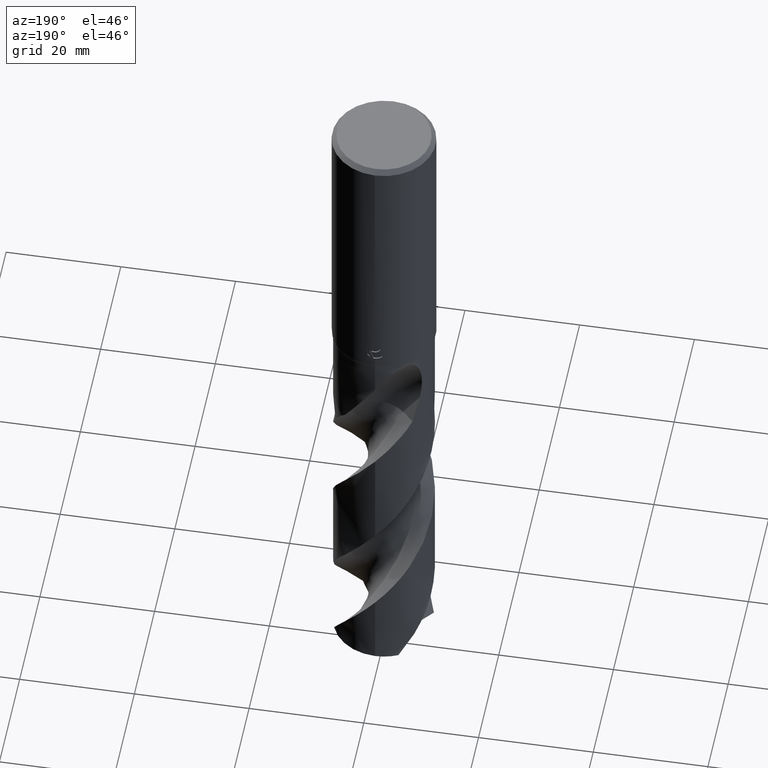
[diagram: clean part render]
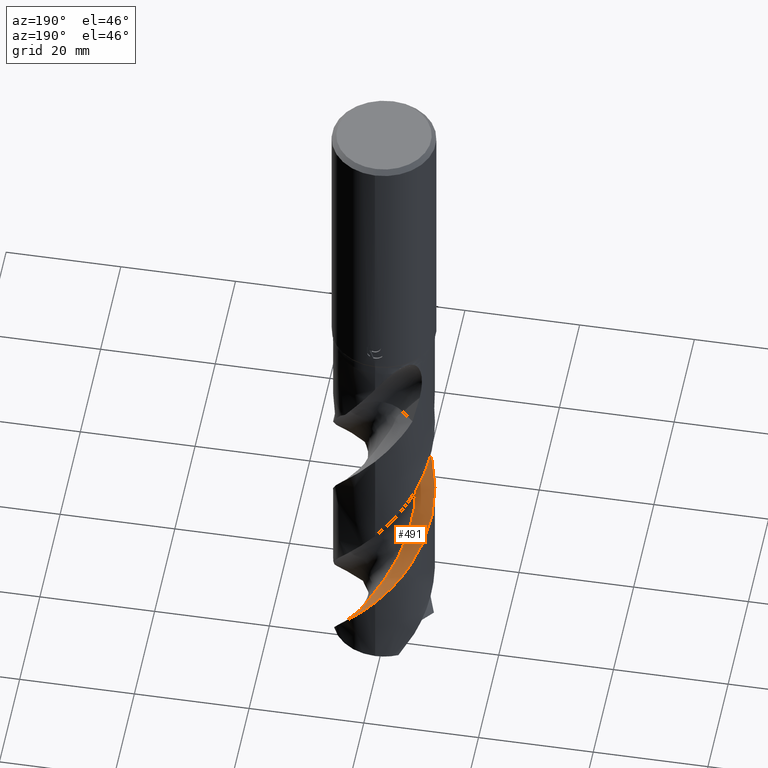
[diagram: same view with one face highlighted and labeled with its STEP entity id]
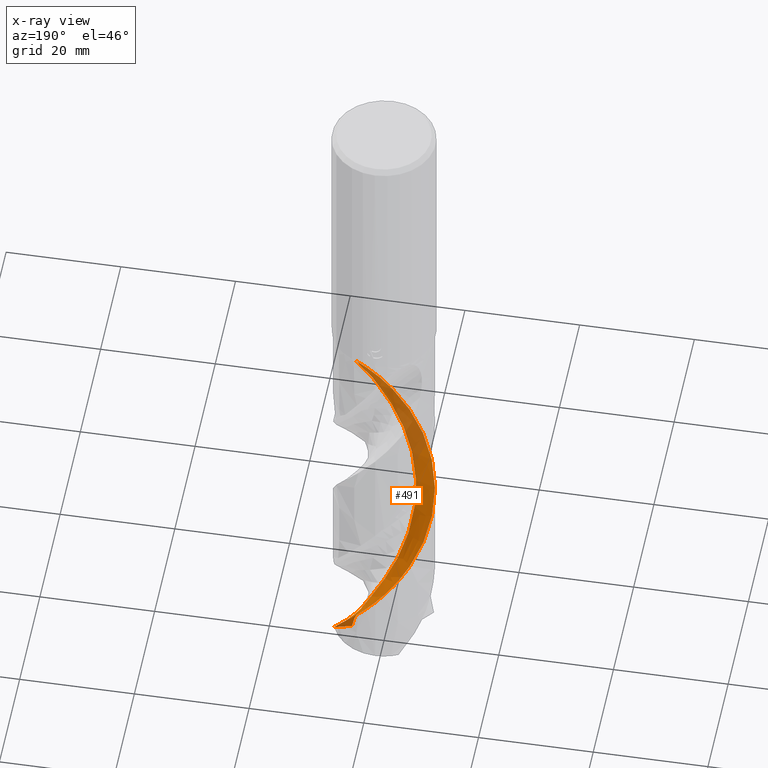
[diagram: x-ray of the same camera — body ghosted, the highlighted face saturated]
A machine part, auxiliary view. The second image highlights one B-rep face of the part: STEP entity #491.
The next image is the same camera in x-ray: the body ghosted, the highlighted face saturated — about 29% of this face is hidden behind the body in this view.
In plain terms, the highlighted face is a freeform B-spline surface patch.
Its self-contained STEP definition (entity closure, byte-faithful):
#339=EDGE_CURVE('',#443,#585,#828,.T.);
#393=EDGE_CURVE('',#471,#709,#890,.T.);
#419=VERTEX_POINT('',#921);
#443=VERTEX_POINT('',#947);
#447=VERTEX_POINT('',#951);
#471=VERTEX_POINT('',#978);
#491=ADVANCED_FACE('',(#998),#999,.F.);
#561=EDGE_CURVE('',#447,#709,#1077,.T.);
#585=VERTEX_POINT('',#1102);
#627=EDGE_CURVE('',#471,#443,#1149,.T.);
#651=EDGE_CURVE('',#419,#447,#1174,.T.);
#709=VERTEX_POINT('',#1236);
#713=EDGE_CURVE('',#585,#419,#1240,.T.);
#828=B_SPLINE_CURVE_WITH_KNOTS('',3,(#1567,#1568,#1569,#1570,#1571,#1572,#1573,#1574,#1575,#1576,#1577,#1578,#1579,#1580,#1581,#1582,#1583,#1584,#1585,#1586,#1587,#1588,#1589,#1590,#1591,#1592,#1593,#1594,#1595,#1596,#1597,#1598,#1599,#1600,#1601,#1602,#1603,#1604,#1605,#1606,#1607,#1608,#1609,#1610,#1611,#1612,#1613,#1614,#1615,#1616,#1617,#1618,#1619,#1620,#1621,#1622,#1623,#1624,#1625,#1626,#1627,#1628,#1629,#1630,#1631,#1632,#1633,#1634,#1635,#1636,#1637,#1638,#1639,#1640,#1641,#1642,#1643,#1644,#1645,#1646,#1647,#1648,#1649,#1650,#1651,#1652,#1653,#1654,#1655,#1656,#1657,#1658,#1659,#1660,#1661,#1662),.UNSPECIFIED.,.F.,.F.,(4,2,2,2,2,2,2,2,2,2,2,2,2,2,2,2,2,2,2,2,2,2,2,2,2,2,2,2,2,2,2,2,2,2,2,2,2,2,2,2,2,2,2,2,2,2,2,4),(0.0,0.245507380170843,0.350571643075017,1.395727254963,1.75121163288603,1.97614686563744,2.18570531824396,2.90763652603391,3.24173027483911,3.70690767106164,4.35111834800054,5.37181342132324,6.99202779965413,8.75473559861788,9.82239104476386,12.4353693166588,13.5149695218915,14.5839453858922,16.7292639530105,17.8100349589752,19.9438823553706,22.0974948359425,24.2480668471858,26.3975937035348,27.477086701343,28.5406174187847,30.684555936824,31.7651695662003,33.8998065443546,36.0538108940197,38.2023473233192,40.3517941158014,42.5096472111785,44.6540260811914,45.7343488328198,47.8665947325595,50.0208399451616,52.1672222816644,54.3168824520309,55.3175252101478,56.2465060748161,59.7418490257528,61.0610371438247,63.3781294761052,64.2490928390077,65.0112059642977,65.0943980190321,70.3596381664071),.UNSPECIFIED.);
#890=B_SPLINE_CURVE_WITH_KNOTS('',3,(#1752,#1753,#1754,#1755,#1756,#1757,#1758,#1759,#1760,#1761,#1762,#1763,#1764,#1765,#1766,#1767,#1768,#1769,#1770,#1771,#1772,#1773,#1774,#1775,#1776,#1777,#1778,#1779,#1780,#1781,#1782,#1783,#1784,#1785,#1786,#1787,#1788,#1789,#1790,#1791,#1792,#1793,#1794,#1795,#1796,#1797,#1798,#1799,#1800,#1801,#1802,#1803,#1804,#1805,#1806,#1807,#1808,#1809),.UNSPECIFIED.,.F.,.F.,(4,1,2,2,2,2,2,2,1,2,1,2,1,2,1,2,1,2,1,2,1,2,1,2,1,2,1,2,1,2,1,2,2,1,2,4),(0.0,1.39101639114549,2.78203278229099,4.17304917343648,5.56406556458198,6.95508195572747,8.34609834687297,11.128131129164,13.9101639114549,16.6921966937459,19.4742294760369,22.2562622583279,25.0382950406189,27.8203278229099,30.6023606052009,33.3843933874919,36.1664261697829,38.9484589520739,41.7304917343648,44.5125245166558,47.2945572989468,50.0765900812378,52.8586228635288,55.6406556458198,58.4226884281108,61.2047212104018,63.9867539926927,66.7687867749837,69.5508195572747,72.3328523395657,75.1148851218567,77.8969179041477,80.6789506864387,83.4609834687297,86.2430162510207,89.0250490333116),.UNSPECIFIED.);
#921=CARTESIAN_POINT('',(1.10111830476442E-014,8.74998104379688,-106.580937867135));
#947=CARTESIAN_POINT('',(6.08186943309707,-6.29062365396806,-63.235));
#951=CARTESIAN_POINT('',(8.13744065526409,3.21629594130501,-119.815260450171));
#978=CARTESIAN_POINT('',(4.12478955449379,-4.33354377550621,-63.235));
#998=FACE_OUTER_BOUND('',#3057,.T.);
#999=B_SPLINE_SURFACE_WITH_KNOTS('',3,3,((#3058,#3059,#3060,#3061,#3062,#3063,#3064,#3065,#3066,#3067,#3068,#3069,#3070,#3071,#3072,#3073,#3074,#3075,#3076,#3077,#3078,#3079,#3080,#3081,#3082,#3083,#3084,#3085,#3086,#3087,#3088,#3089,#3090,#3091,#3092,#3093,#3094,#3095,#3096,#3097,#3098,#3099,#3100,#3101,#3102,#3103,#3104,#3105,#3106,#3107,#3108,#3109,#3110,#3111,#3112,#3113,#3114,#3115,#3116,#3117),(#3118,#3119,#3120,#3121,#3122,#3123,#3124,#3125,#3126,#3127,#3128,#3129,#3130,#3131,#3132,#3133,#3134,#3135,#3136,#3137,#3138,#3139,#3140,#3141,#3142,#3143,#3144,#3145,#3146,#3147,#3148,#3149,#3150,#3151,#3152,#3153,#3154,#3155,#3156,#3157,#3158,#3159,#3160,#3161,#3162,#3163,#3164,#3165,#3166,#3167,#3168,#3169,#3170,#3171,#3172,#3173,#3174,#3175,#3176,#3177),(#3178,#3179,#3180,#3181,#3182,#3183,#3184,#3185,#3186,#3187,#3188,#3189,#3190,#3191,#3192,#3193,#3194,#3195,#3196,#3197,#3198,#3199,#3200,#3201,#3202,#3203,#3204,#3205,#3206,#3207,#3208,#3209,#3210,#3211,#3212,#3213,#3214,#3215,#3216,#3217,#3218,#3219,#3220,#3221,#3222,#3223,#3224,#3225,#3226,#3227,#3228,#3229,#3230,#3231,#3232,#3233,#3234,#3235,#3236,#3237),(#3238,#3239,#3240,#3241,#3242,#3243,#3244,#3245,#3246,#3247,#3248,#3249,#3250,#3251,#3252,#3253,#3254,#3255,#3256,#3257,#3258,#3259,#3260,#3261,#3262,#3263,#3264,#3265,#3266,#3267,#3268,#3269,#3270,#3271,#3272,#3273,#3274,#3275,#3276,#3277,#3278,#3279,#3280,#3281,#3282,#3283,#3284,#3285,#3286,#3287,#3288,#3289,#3290,#3291,#3292,#3293,#3294,#3295,#3296,#3297)),.UNSPECIFIED.,.F.,.F.,.F.,(4,4),(4,1,2,2,2,2,2,2,2,2,1,2,1,2,1,2,1,2,1,2,1,2,1,2,1,2,1,2,1,2,1,2,2,2,2,4),(2.5367484805458E-015,11.66666667),(0.0,1.39101639114549,2.78203278229099,4.17304917343648,5.56406556458198,6.95508195572747,8.34609834687297,11.128131129164,13.9101639114549,16.6921966937459,19.4742294760369,22.2562622583279,25.0382950406189,27.8203278229099,30.6023606052009,33.3843933874919,36.1664261697829,38.9484589520739,41.7304917343648,44.5125245166558,47.2945572989468,50.0765900812378,52.8586228635288,55.6406556458198,58.4226884281108,61.2047212104018,63.9867539926927,66.7687867749837,69.5508195572747,72.3328523395657,75.1148851218567,77.8969179041477,80.6789506864387,83.4609834687297,86.2430162510207,89.0250490333116),.UNSPECIFIED.);
#1077=B_SPLINE_CURVE_WITH_KNOTS('',3,(#4242,#4243,#4244,#4245,#4246,#4247),.UNSPECIFIED.,.F.,.F.,(4,2,4),(0.0,3.9223870728841,7.73565698404464),.UNSPECIFIED.);
#1102=CARTESIAN_POINT('',(-3.17431485475902E-013,-8.7499311827888,-71.7703451904479));
#1149=LINE('',#4553,#4554);
#1174=B_SPLINE_CURVE_WITH_KNOTS('',3,(#4958,#4959,#4960,#4961,#4962,#4963,#4964,#4965,#4966,#4967,#4968,#4969,#4970,#4971,#4972,#4973,#4974,#4975,#4976,#4977,#4978,#4979,#4980,#4981,#4982,#4983,#4984,#4985,#4986,#4987,#4988,#4989,#4990,#4991,#4992,#4993,#4994,#4995,#4996,#4997,#4998,#4999,#5000,#5001,#5002,#5003,#5004,#5005,#5006,#5007,#5008,#5009,#5010,#5011,#5012,#5013,#5014,#5015,#5016,#5017,#5018,#5019,#5020,#5021,#5022,#5023,#5024,#5025,#5026,#5027,#5028,#5029,#5030,#5031,#5032,#5033,#5034,#5035,#5036,#5037,#5038,#5039,#5040,#5041,#5042,#5043,#5044,#5045,#5046,#5047,#5048,#5049,#5050,#5051,#5052,#5053),.UNSPECIFIED.,.F.,.F.,(4,2,2,2,2,2,2,2,2,2,2,2,2,2,2,2,2,2,2,2,2,2,2,2,2,2,2,2,2,2,2,2,2,2,2,2,2,2,2,2,2,2,2,2,2,2,2,4),(0.0,0.245507380170843,0.350571643075017,1.395727254963,1.75121163288603,1.97614686563744,2.18570531824396,2.90763652603391,3.24173027483911,3.70690767106164,4.35111834800054,5.37181342132324,6.99202779965413,8.75473559861788,9.82239104476386,12.4353693166588,13.5149695218915,14.5839453858922,16.7292639530105,17.8100349589752,19.9438823553706,22.0974948359425,24.2480668471858,26.3975937035348,27.477086701343,28.5406174187847,30.684555936824,31.7651695662003,33.8998065443546,36.0538108940197,38.2023473233192,40.3517941158014,42.5096472111785,44.6540260811914,45.7343488328198,47.8665947325595,50.0208399451616,52.1672222816644,54.3168824520309,55.3175252101478,56.2465060748161,59.7418490257528,61.0610371438247,63.3781294761052,64.2490928390077,65.0112059642977,65.0943980190321,70.3596381664071),.UNSPECIFIED.);
#1236=CARTESIAN_POINT('',(5.37178128145233,1.24871425534203,-120.992700976098));
#1240=B_SPLINE_CURVE_WITH_KNOTS('',3,(#5209,#5210,#5211,#5212,#5213,#5214,#5215,#5216,#5217,#5218,#5219,#5220,#5221,#5222,#5223,#5224,#5225,#5226,#5227,#5228,#5229,#5230,#5231,#5232,#5233,#5234,#5235,#5236,#5237,#5238,#5239,#5240,#5241,#5242,#5243,#5244,#5245,#5246,#5247,#5248,#5249,#5250,#5251,#5252,#5253,#5254,#5255,#5256,#5257,#5258,#5259,#5260,#5261,#5262,#5263,#5264,#5265,#5266,#5267,#5268,#5269,#5270,#5271,#5272,#5273,#5274,#5275,#5276,#5277,#5278,#5279,#5280,#5281,#5282,#5283,#5284,#5285,#5286,#5287,#5288,#5289,#5290,#5291,#5292,#5293,#5294,#5295,#5296,#5297,#5298,#5299,#5300,#5301,#5302,#5303,#5304),.UNSPECIFIED.,.F.,.F.,(4,2,2,2,2,2,2,2,2,2,2,2,2,2,2,2,2,2,2,2,2,2,2,2,2,2,2,2,2,2,2,2,2,2,2,2,2,2,2,2,2,2,2,2,2,2,2,4),(0.0,0.245507380170843,0.350571643075017,1.395727254963,1.75121163288603,1.97614686563744,2.18570531824396,2.90763652603391,3.24173027483911,3.70690767106164,4.35111834800054,5.37181342132324,6.99202779965413,8.75473559861788,9.82239104476386,12.4353693166588,13.5149695218915,14.5839453858922,16.7292639530105,17.8100349589752,19.9438823553706,22.0974948359425,24.2480668471858,26.3975937035348,27.477086701343,28.5406174187847,30.684555936824,31.7651695662003,33.8998065443546,36.0538108940197,38.2023473233192,40.3517941158014,42.5096472111785,44.6540260811914,45.7343488328198,47.8665947325595,50.0208399451616,52.1672222816644,54.3168824520309,55.3175252101478,56.2465060748161,59.7418490257528,61.0610371438247,63.3781294761052,64.2490928390077,65.0112059642977,65.0943980190321,70.3596381664071),.UNSPECIFIED.);
#1567=CARTESIAN_POINT('',(6.08186943309706,-6.29062365396806,-63.235));
#1568=CARTESIAN_POINT('',(6.04695114056061,-6.32438331488388,-63.3008642180626));
#1569=CARTESIAN_POINT('',(6.01169387551492,-6.35790875757231,-63.3667040252356));
#1570=CARTESIAN_POINT('',(5.96078889463706,-6.40550695858466,-63.4606122428381));
#1571=CARTESIAN_POINT('',(5.94546613209726,-6.41973201142739,-63.4887336033103));
#1572=CARTESIAN_POINT('',(5.77689377400906,-6.57510366858302,-63.7964182215658));
#1573=CARTESIAN_POINT('',(5.6198693855694,-6.71005726229731,-64.0672614045973));
#1574=CARTESIAN_POINT('',(5.39333102092037,-6.89046403243696,-64.434665739004));
#1575=CARTESIAN_POINT('',(5.33508239081258,-6.93566993394222,-64.5273143581722));
#1576=CARTESIAN_POINT('',(5.23841689336202,-7.00873108713868,-64.6785128773168));
#1577=CARTESIAN_POINT('',(5.2006622050373,-7.03679304229602,-64.7369516092899));
#1578=CARTESIAN_POINT('',(5.12710835949873,-7.09054389136373,-64.849786905083));
#1579=CARTESIAN_POINT('',(5.09140179359838,-7.11622730878856,-64.9041103574334));
#1580=CARTESIAN_POINT('',(4.93161537760109,-7.22933748268537,-65.1455739996998));
#1581=CARTESIAN_POINT('',(4.80588047595231,-7.31358327595121,-65.3319736659403));
#1582=CARTESIAN_POINT('',(4.61491717895543,-7.43429816937099,-65.6131355273926));
#1583=CARTESIAN_POINT('',(4.55417462096435,-7.47165978818011,-65.7021895683608));
#1584=CARTESIAN_POINT('',(4.40810659813298,-7.55907139299482,-65.9156068519517));
#1585=CARTESIAN_POINT('',(4.3228485621441,-7.60814257823308,-66.0396410482821));
#1586=CARTESIAN_POINT('',(4.11732401394325,-7.72187852507259,-66.337342261508));
#1587=CARTESIAN_POINT('',(3.99662547767314,-7.78502685785634,-66.5109601417654));
#1588=CARTESIAN_POINT('',(3.6814987335427,-7.94066559480272,-66.9590563801048));
#1589=CARTESIAN_POINT('',(3.48454366230284,-8.02906177012657,-67.2338248885201));
#1590=CARTESIAN_POINT('',(2.96631652560157,-8.23892139081913,-67.9433539039622));
#1591=CARTESIAN_POINT('',(2.6413502176823,-8.34879771535567,-68.3745974998749));
#1592=CARTESIAN_POINT('',(1.94973057671976,-8.53811370153049,-69.2813541843633));
#1593=CARTESIAN_POINT('',(1.58343596884471,-8.61356586428193,-69.7537106388538));
#1594=CARTESIAN_POINT('',(0.989423283880422,-8.69675215242062,-70.5136045397731));
#1595=CARTESIAN_POINT('',(0.764296597746477,-8.71941761625547,-70.8003492720272));
#1596=CARTESIAN_POINT('',(-0.0136838373550614,-8.76740065174396,-71.7888179791641));
#1597=CARTESIAN_POINT('',(-0.568323297196325,-8.74901878257479,-72.487978616382));
#1598=CARTESIAN_POINT('',(-1.34491889534234,-8.64898493196426,-73.4787451903307));
#1599=CARTESIAN_POINT('',(-1.57070262765392,-8.61084289211526,-73.768305250687));
#1600=CARTESIAN_POINT('',(-2.01648422559392,-8.51742344146447,-74.3449062825655));
#1601=CARTESIAN_POINT('',(-2.2363028236008,-8.46236366048873,-74.6317120991434));
#1602=CARTESIAN_POINT('',(-2.88990634311814,-8.27141903834646,-75.4946949736193));
#1603=CARTESIAN_POINT('',(-3.31567926066237,-8.11014470092906,-76.0701879325569));
#1604=CARTESIAN_POINT('',(-3.93434652129481,-7.81887591437314,-76.9360885710545));
#1605=CARTESIAN_POINT('',(-4.13773739151371,-7.71317603060438,-77.2259807977665));
#1606=CARTESIAN_POINT('',(-4.72978259212243,-7.37532051002985,-78.0885676305373));
#1607=CARTESIAN_POINT('',(-5.10462886665366,-7.12100011982243,-78.6602519585989));
#1608=CARTESIAN_POINT('',(-5.81465575386511,-6.554348952274,-79.8113522304908));
#1609=CARTESIAN_POINT('',(-6.14861488298059,-6.24215830582371,-80.3887157387166));
#1610=CARTESIAN_POINT('',(-6.76450179401147,-5.56874864225426,-81.5438396426138));
#1611=CARTESIAN_POINT('',(-7.0453524686113,-5.20885909755066,-82.1196848054443));
#1612=CARTESIAN_POINT('',(-7.54819184916735,-4.44902590141817,-83.2742335524868));
#1613=CARTESIAN_POINT('',(-7.76958568175996,-4.05004021644,-83.8507073442956));
#1614=CARTESIAN_POINT('',(-8.05402921679033,-3.42733333906293,-84.7173950019565));
#1615=CARTESIAN_POINT('',(-8.14092767638335,-3.21548256081841,-85.0069488946261));
#1616=CARTESIAN_POINT('',(-8.29676500474799,-2.78858352603368,-85.5820635022457));
#1617=CARTESIAN_POINT('',(-8.36585655192069,-2.57388802440909,-85.8673170771149));
#1618=CARTESIAN_POINT('',(-8.54895906042397,-1.91922713484442,-86.7284907017642));
#1619=CARTESIAN_POINT('',(-8.63709799950328,-1.47268976602944,-87.3037081481228));
#1620=CARTESIAN_POINT('',(-8.7168894506855,-0.793743905881658,-88.1693570114054));
#1621=CARTESIAN_POINT('',(-8.73468768477551,-0.565213579147177,-88.4592721956927));
#1622=CARTESIAN_POINT('',(-8.76088967376838,0.116169448625162,-89.3222298570315));
#1623=CARTESIAN_POINT('',(-8.74314436067854,0.569036229118955,-89.8943389076591));
#1624=CARTESIAN_POINT('',(-8.63737829360467,1.47167610740551,-91.0459856937966));
#1625=CARTESIAN_POINT('',(-8.54884317756405,1.92034625765798,-91.6235264694683));
#1626=CARTESIAN_POINT('',(-8.30273018106785,2.7989447857647,-92.778397077264));
#1627=CARTESIAN_POINT('',(-8.145793823656,3.22726046112694,-93.3538207821398));
#1628=CARTESIAN_POINT('',(-7.76673948850341,4.05550607010148,-94.5080111228307));
#1629=CARTESIAN_POINT('',(-7.5450571292593,4.4544072733002,-95.0845539344211));
#1630=CARTESIAN_POINT('',(-7.04042121705228,5.21572214389278,-96.2408598726556));
#1631=CARTESIAN_POINT('',(-6.75814945954487,5.5766073240678,-96.8185444277856));
#1632=CARTESIAN_POINT('',(-6.14181476812009,6.2487334003351,-97.9738603709943));
#1633=CARTESIAN_POINT('',(-5.80891292716821,6.55936342626212,-98.5492655578257));
#1634=CARTESIAN_POINT('',(-5.27418198869191,6.98551844175301,-99.4150857084048));
#1635=CARTESIAN_POINT('',(-5.08947219717215,7.12122033523081,-99.7049656105187));
#1636=CARTESIAN_POINT('',(-4.52489339677787,7.50279371699478,-100.567341546109));
#1637=CARTESIAN_POINT('',(-4.1312445850339,7.72651839020674,-101.138967422886));
#1638=CARTESIAN_POINT('',(-3.30903652010841,8.11300256098309,-102.290209900186));
#1639=CARTESIAN_POINT('',(-2.88110159214424,8.27466663941564,-102.867871029936));
#1640=CARTESIAN_POINT('',(-2.00517740987729,8.52928048479052,-104.022387299036));
#1641=CARTESIAN_POINT('',(-1.55893005006292,8.62199673096349,-104.597361207727));
#1642=CARTESIAN_POINT('',(-0.655677359061875,8.73726726659154,-105.751221391228));
#1643=CARTESIAN_POINT('',(-0.199751187008872,8.75957279451484,-106.327898851739));
#1644=CARTESIAN_POINT('',(0.468094281644172,8.74002910025182,-107.173738455606));
#1645=CARTESIAN_POINT('',(0.679949708368616,8.7261053460766,-107.442254432378));
#1646=CARTESIAN_POINT('',(1.08714923327317,8.68441956876159,-107.960279189675));
#1647=CARTESIAN_POINT('',(1.28239539231208,8.65774041334346,-108.209536036407));
#1648=CARTESIAN_POINT('',(2.20703239522124,8.49944130204558,-109.39775790451));
#1649=CARTESIAN_POINT('',(2.91897162524612,8.282019109531,-110.333520334465));
#1650=CARTESIAN_POINT('',(3.8502618126734,7.86232263911101,-111.626150568195));
#1651=CARTESIAN_POINT('',(4.09966291381705,7.7351986294086,-111.9799701061));
#1652=CARTESIAN_POINT('',(4.76898962943171,7.3525788899059,-112.956813572083));
#1653=CARTESIAN_POINT('',(5.17429776646863,7.07322545324003,-113.578780366444));
#1654=CARTESIAN_POINT('',(5.69680384024765,6.6440136464892,-114.435086372614));
#1655=CARTESIAN_POINT('',(5.83582492195996,6.52224407876544,-114.668923785118));
#1656=CARTESIAN_POINT('',(6.08910960031771,6.28579933212143,-115.107471223783));
#1657=CARTESIAN_POINT('',(6.20423235659359,6.1721987734448,-115.312060175938));
#1658=CARTESIAN_POINT('',(6.32835999379529,6.04272820807818,-115.539050963789));
#1659=CARTESIAN_POINT('',(6.3405371892199,6.02994967658704,-115.56139023297));
#1660=CARTESIAN_POINT('',(7.12092583826255,5.2060461725843,-116.997674507354));
#1661=CARTESIAN_POINT('',(7.72679317318363,4.25525561885099,-118.401274613178));
#1662=CARTESIAN_POINT('',(8.13744065526407,3.21629594130507,-119.815260450171));
#1752=CARTESIAN_POINT('',(4.1247895544938,-4.33354377550621,-63.235));
#1753=CARTESIAN_POINT('',(3.77645616445166,-4.31152079683385,-63.5457102260851));
#1754=CARTESIAN_POINT('',(3.20662024093853,-4.3327416030977,-64.1651343730379));
#1755=CARTESIAN_POINT('',(2.89089463792021,-4.47023649211264,-64.7831297684385));
#1756=CARTESIAN_POINT('',(2.69035371169134,-4.67658113932097,-65.4060808472433));
#1757=CARTESIAN_POINT('',(2.59368328361544,-4.78042581959444,-65.7183461283764));
#1758=CARTESIAN_POINT('',(2.40211113893187,-4.98912802571495,-66.3460502161992));
#1759=CARTESIAN_POINT('',(2.27856935349798,-5.07085990461522,-66.6595486270126));
#1760=CARTESIAN_POINT('',(1.99098261609314,-5.18751605156565,-67.2827938111816));
#1761=CARTESIAN_POINT('',(1.83788062469508,-5.23315518339921,-67.5937569778198));
#1762=CARTESIAN_POINT('',(1.519654179233,-5.30065511416193,-68.2135270523726));
#1763=CARTESIAN_POINT('',(1.3648073029081,-5.33422096522413,-68.5238374423506));
#1764=CARTESIAN_POINT('',(0.910571157443271,-5.43511942960356,-69.4572011099172));
#1765=CARTESIAN_POINT('',(0.603432150116775,-5.4782258595351,-70.0798248743369));
#1766=CARTESIAN_POINT('',(-0.00849320171286022,-5.52429413360709,-71.3267623241437));
#1767=CARTESIAN_POINT('',(-0.63232583795208,-5.50147392697858,-72.5723212023335));
#1768=CARTESIAN_POINT('',(-1.24179383701627,-5.37517440417505,-73.8164211751213));
#1769=CARTESIAN_POINT('',(-1.83521538404798,-5.21057912099607,-75.0619271845112));
#1770=CARTESIAN_POINT('',(-2.41601505113245,-4.98120582283179,-76.3076867982922));
#1771=CARTESIAN_POINT('',(-2.94942882972431,-4.65937189681166,-77.5525561380626));
#1772=CARTESIAN_POINT('',(-3.45544802116565,-4.30945288154386,-78.7977785802314));
#1773=CARTESIAN_POINT('',(-3.92811607619388,-3.90220328378114,-80.0434016414764));
#1774=CARTESIAN_POINT('',(-4.32508455870751,-3.42210827761753,-81.2883031296988));
#1775=CARTESIAN_POINT('',(-4.68649656746802,-2.92392990461419,-82.5335694349336));
#1776=CARTESIAN_POINT('',(-4.99754550471388,-2.38287775648526,-83.7792048052511));
#1777=CARTESIAN_POINT('',(-5.21334478150672,-1.79850004630504,-85.024101070578));
#1778=CARTESIAN_POINT('',(-5.38977450609991,-1.20893816943146,-86.2693761966126));
#1779=CARTESIAN_POINT('',(-5.504460049285,-0.595528197451616,-87.5150192164951));
#1780=CARTESIAN_POINT('',(-5.51487036050869,0.0273078146947815,-88.7599138410707));
#1781=CARTESIAN_POINT('',(-5.48640383306262,0.642017415345429,-90.0051806592729));
#1782=CARTESIAN_POINT('',(-5.39174516771179,1.2588233355954,-91.2508206772326));
#1783=CARTESIAN_POINT('',(-5.19547825799709,1.85004380506878,-92.4957138155722));
#1784=CARTESIAN_POINT('',(-4.96517559267861,2.42072835177363,-93.7409751987574));
#1785=CARTESIAN_POINT('',(-4.67174269412443,2.97148742600015,-94.9866112910163));
#1786=CARTESIAN_POINT('',(-4.29091626874727,3.46448919272117,-96.2315070005135));
#1787=CARTESIAN_POINT('',(-3.88476261156395,3.9268518212584,-97.4767750401516));
#1788=CARTESIAN_POINT('',(-3.4256532697369,4.34953630820278,-98.7224148538861));
#1789=CARTESIAN_POINT('',(-2.90323156250137,4.68884036288425,-99.9673148555738));
#1790=CARTESIAN_POINT('',(-2.36705902760622,4.99087263258737,-101.212590782194));
#1791=CARTESIAN_POINT('',(-1.79400872040026,5.23792849430001,-102.458230234942));
#1792=CARTESIAN_POINT('',(-1.18878743981606,5.38535006652249,-103.703113761097));
#1793=CARTESIAN_POINT('',(-0.5829339658762,5.49307019260873,-104.948366948598));
#1794=CARTESIAN_POINT('',(0.0395688999833924,5.53666201309968,-106.194013977329));
#1795=CARTESIAN_POINT('',(0.659560654806151,5.47538062408917,-107.438935544905));
#1796=CARTESIAN_POINT('',(1.26703451116937,5.37628751768538,-108.684224162543));
#1797=CARTESIAN_POINT('',(1.86892135299355,5.21143048978561,-109.929827752193));
#1798=CARTESIAN_POINT('',(2.43370675428933,4.94914752280466,-111.17465497643));
#1799=CARTESIAN_POINT('',(2.97425901421179,4.65566543800207,-112.419881611918));
#1800=CARTESIAN_POINT('',(3.48774050487845,4.30085656722699,-113.665637016453));
#1801=CARTESIAN_POINT('',(3.93324555874842,3.86416118280486,-114.910653784253));
#1802=CARTESIAN_POINT('',(4.34495863003048,3.40531057209375,-116.155888939284));
#1803=CARTESIAN_POINT('',(4.52930330042367,3.15466041559549,-116.778439439662));
#1804=CARTESIAN_POINT('',(4.85574043555923,2.62955971642568,-118.023786828017));
#1805=CARTESIAN_POINT('',(5.1314317125396,2.06849706048039,-119.270147478998));
#1806=CARTESIAN_POINT('',(5.31627738212136,1.47775852974929,-120.513746511354));
#1807=CARTESIAN_POINT('',(5.46130524510955,0.883086878880869,-121.757449543899));
#1808=CARTESIAN_POINT('',(5.49151355102552,0.567624054684736,-122.380227039899));
#1809=CARTESIAN_POINT('',(5.48400523910252,0.247098141477521,-123.002075501232));
#3057=EDGE_LOOP('',(#5756,#5757,#5758,#5759,#5760,#5761));
#3058=CARTESIAN_POINT('',(4.12478955456451,-4.3335437754355,-63.235));
#3059=CARTESIAN_POINT('',(3.77645616452237,-4.3115207967549,-63.5457102260861));
#3060=CARTESIAN_POINT('',(3.20662024100923,-4.33274160303085,-64.1651343730378));
#3061=CARTESIAN_POINT('',(2.89089463799721,-4.47023649204884,-64.7831297684373));
#3062=CARTESIAN_POINT('',(2.69035371176834,-4.67658113925717,-65.4060808472442));
#3063=CARTESIAN_POINT('',(2.59368328369837,-4.7804258195468,-65.7183461283763));
#3064=CARTESIAN_POINT('',(2.40211113901479,-4.98912802565083,-66.3460502161991));
#3065=CARTESIAN_POINT('',(2.27856935357339,-5.07085990457552,-66.6595486270126));
#3066=CARTESIAN_POINT('',(1.99098261619326,-5.18751605150948,-67.2827938111816));
#3067=CARTESIAN_POINT('',(1.83788062478645,-5.23315518335445,-67.5937569778198));
#3068=CARTESIAN_POINT('',(1.51965417932437,-5.30065511412541,-68.2135270523726));
#3069=CARTESIAN_POINT('',(1.36480730300247,-5.33422096518281,-68.5238374423547));
#3070=CARTESIAN_POINT('',(0.910571157537638,-5.43511942958695,-69.4572011099088));
#3071=CARTESIAN_POINT('',(0.603432150215364,-5.47822585951837,-70.0798248743369));
#3072=CARTESIAN_POINT('',(-0.00849320161427064,-5.52429413359036,-71.3267623241437));
#3073=CARTESIAN_POINT('',(-0.320452119815132,-5.51286262567487,-71.9497970721984));
#3074=CARTESIAN_POINT('',(-0.937017237301512,-5.43834557019495,-73.1941158797676));
#3075=CARTESIAN_POINT('',(-1.24179383690123,-5.37517440419191,-73.8164211751213));
#3076=CARTESIAN_POINT('',(-1.83521538396588,-5.21057912101293,-75.0619271845111));
#3077=CARTESIAN_POINT('',(-2.41601505103677,-4.98120582286539,-76.3076867982921));
#3078=CARTESIAN_POINT('',(-2.94942882962038,-4.65937189686015,-77.5525561380626));
#3079=CARTESIAN_POINT('',(-3.45544802109467,-4.30945288159236,-78.7977785802314));
#3080=CARTESIAN_POINT('',(-3.92811607609823,-3.90220328384452,-80.0434016414763));
#3081=CARTESIAN_POINT('',(-4.3250845586575,-3.42210827769223,-81.2883031296988));
#3082=CARTESIAN_POINT('',(-4.68649656738507,-2.92392990468889,-82.5335694349336));
#3083=CARTESIAN_POINT('',(-4.99754550466424,-2.38287775657949,-83.7792048052511));
#3084=CARTESIAN_POINT('',(-5.21334478147693,-1.79850004638105,-85.0241010705779));
#3085=CARTESIAN_POINT('',(-5.38977450605365,-1.20893816954042,-86.2693761966125));
#3086=CARTESIAN_POINT('',(-5.50446004927095,-0.595528197542319,-87.5150192164786));
#3087=CARTESIAN_POINT('',(-5.51487036049516,0.0273078145949218,-88.7599138411036));
#3088=CARTESIAN_POINT('',(-5.48640383306557,0.64201741524557,-90.0051806592399));
#3089=CARTESIAN_POINT('',(-5.39174516771937,1.25882333549465,-91.250820677249));
#3090=CARTESIAN_POINT('',(-5.19547825802512,1.85004380497279,-92.4957138155721));
#3091=CARTESIAN_POINT('',(-4.96517559270665,2.42072835167764,-93.7409751987574));
#3092=CARTESIAN_POINT('',(-4.67174269417704,2.97148742590072,-94.9866112910162));
#3093=CARTESIAN_POINT('',(-4.29091626878901,3.46448919265633,-96.2315070005135));
#3094=CARTESIAN_POINT('',(-3.88476261163863,3.92685182116062,-97.4767750401515));
#3095=CARTESIAN_POINT('',(-3.4256532698007,4.34953630814375,-98.7224148538861));
#3096=CARTESIAN_POINT('',(-2.9032315625832,4.68884036281854,-99.9673148555738));
#3097=CARTESIAN_POINT('',(-2.36705902768805,4.99087263253813,-101.212590782193));
#3098=CARTESIAN_POINT('',(-1.79400872048774,5.23792849424823,-102.458230234909));
#3099=CARTESIAN_POINT('',(-1.18878743992053,5.38535006650356,-103.703113761163));
#3100=CARTESIAN_POINT('',(-0.582933965964202,5.49307019257333,-104.948366948532));
#3101=CARTESIAN_POINT('',(0.0395688998866709,5.53666201310125,-106.194013977362));
#3102=CARTESIAN_POINT('',(0.65956065468987,5.47538062407889,-107.438935544904));
#3103=CARTESIAN_POINT('',(1.26703451108603,5.37628751770804,-108.684224162543));
#3104=CARTESIAN_POINT('',(1.86892135289482,5.21143048979642,-109.929827752192));
#3105=CARTESIAN_POINT('',(2.43370675418071,4.94914752285176,-111.17465497643));
#3106=CARTESIAN_POINT('',(2.97425901413613,4.6556654380327,-112.419881611918));
#3107=CARTESIAN_POINT('',(3.48774050479296,4.30085656728771,-113.66563701642));
#3108=CARTESIAN_POINT('',(3.93324555865782,3.86416118286787,-114.910653784319));
#3109=CARTESIAN_POINT('',(4.34495862997283,3.405310572165,-116.155888939218));
#3110=CARTESIAN_POINT('',(4.52930330035367,3.15466041566589,-116.778439439727));
#3111=CARTESIAN_POINT('',(4.8557404355057,2.62955971651256,-118.023786827951));
#3112=CARTESIAN_POINT('',(4.99329646634718,2.34867622161,-118.646865039311));
#3113=CARTESIAN_POINT('',(5.22414415493726,1.77347996213362,-119.892049109373));
#3114=CARTESIAN_POINT('',(5.31627738208089,1.47775852983571,-120.513746511354));
#3115=CARTESIAN_POINT('',(5.46130524508555,0.883086878983768,-121.757449543899));
#3116=CARTESIAN_POINT('',(5.49151355100928,0.567624054791645,-122.380227039965));
#3117=CARTESIAN_POINT('',(5.48400523908628,0.247098141576193,-123.002075501232));
#3118=CARTESIAN_POINT('',(6.87464925994477,-7.08340348088485,-63.2349999999914));
#3119=CARTESIAN_POINT('',(6.52797361996631,-7.05972259198695,-63.5456651027966));
#3120=CARTESIAN_POINT('',(5.91782619824664,-7.12232386038888,-64.1626306179655));
#3121=CARTESIAN_POINT('',(5.46751536621841,-7.38568323844169,-64.7765229914927));
#3122=CARTESIAN_POINT('',(5.0759316775554,-7.75031122623848,-65.399566078551));
#3123=CARTESIAN_POINT('',(4.87660099901894,-7.9314897598069,-65.7126396679107));
#3124=CARTESIAN_POINT('',(4.46570584634584,-8.28799453365938,-66.3443967632556));
#3125=CARTESIAN_POINT('',(4.23885731448296,-8.43132074092125,-66.6596049129222));
#3126=CARTESIAN_POINT('',(3.75925536192145,-8.65286373214093,-67.2833223901004));
#3127=CARTESIAN_POINT('',(3.51156317909283,-8.74494140926832,-67.5940099162102));
#3128=CARTESIAN_POINT('',(3.00703323695685,-8.89531058571097,-68.2115186217264));
#3129=CARTESIAN_POINT('',(2.75426648224313,-8.96804850669578,-68.5210317432441));
#3130=CARTESIAN_POINT('',(1.99187716558545,-9.17699204466355,-69.4539303247017));
#3131=CARTESIAN_POINT('',(1.47262523871372,-9.27520073664485,-70.0765467575545));
#3132=CARTESIAN_POINT('',(0.423930230652491,-9.39540860316944,-71.3248057949881));
#3133=CARTESIAN_POINT('',(-0.105765803734027,-9.40192053903581,-71.9481579205843));
#3134=CARTESIAN_POINT('',(-1.15775913077696,-9.32706203604978,-73.1917259280086));
#3135=CARTESIAN_POINT('',(-1.68016771668812,-9.24555268420177,-73.8137716103797));
#3136=CARTESIAN_POINT('',(-2.70793867856207,-9.00667495154606,-75.0594672416491));
#3137=CARTESIAN_POINT('',(-3.71069084345645,-8.66743406281204,-76.30561572477));
#3138=CARTESIAN_POINT('',(-4.64247396369125,-8.1673302636715,-77.5501709440023));
#3139=CARTESIAN_POINT('',(-5.53454023984206,-7.60331661531309,-78.7953575117615));
#3140=CARTESIAN_POINT('',(-6.36956363704115,-6.95245376690891,-80.0412625924329));
#3141=CARTESIAN_POINT('',(-7.08347992946205,-6.17226437541952,-81.2858742587468));
#3142=CARTESIAN_POINT('',(-7.73817484627627,-5.34454239416368,-82.5311405639816));
#3143=CARTESIAN_POINT('',(-8.31047186308599,-4.45389995983888,-83.7770663536983));
#3144=CARTESIAN_POINT('',(-8.72612653494656,-3.48150109169541,-85.0216703356415));
#3145=CARTESIAN_POINT('',(-9.07035688880693,-2.48386139896783,-86.2669505865917));
#3146=CARTESIAN_POINT('',(-9.31596468540676,-1.45406339899723,-87.5128918319902));
#3147=CARTESIAN_POINT('',(-9.38662466011334,-0.398899992466679,-88.7574913221076));
#3148=CARTESIAN_POINT('',(-9.38151813889451,0.656453700657512,-90.002758140244));
#3149=CARTESIAN_POINT('',(-9.27266123759175,1.70953198721904,-91.248692678151));
#3150=CARTESIAN_POINT('',(-8.99023548040071,2.72864826563279,-92.4932905284537));
#3151=CARTESIAN_POINT('',(-8.63622119464112,3.72285584280682,-93.7385467867233));
#3152=CARTESIAN_POINT('',(-8.18508342452855,4.68060166798534,-94.9844750351886));
#3153=CARTESIAN_POINT('',(-7.58141683445454,5.54888987945739,-96.2290772315145));
#3154=CARTESIAN_POINT('',(-6.91843187249184,6.36999788566739,-97.4743452711525));
#3155=CARTESIAN_POINT('',(-6.17587813106486,7.12458587425279,-98.7202807069758));
#3156=CARTESIAN_POINT('',(-5.31900338429286,7.74435604124049,-99.9648881301571));
#3157=CARTESIAN_POINT('',(-4.42175875998056,8.30000052812099,-101.210174306608));
#3158=CARTESIAN_POINT('',(-3.47140335394382,8.76652622824587,-102.456107634307));
#3159=CARTESIAN_POINT('',(-2.45775642690605,9.06799197054902,-103.700686282014));
#3160=CARTESIAN_POINT('',(-1.42723130075735,9.29560757673363,-104.945929219552));
#3161=CARTESIAN_POINT('',(-0.376058771026561,9.42148878815143,-106.191870519123));
#3162=CARTESIAN_POINT('',(0.680231021091323,9.37046449282984,-107.436523095843));
#3163=CARTESIAN_POINT('',(1.72797997603323,9.2440543047412,-108.681832213144));
#3164=CARTESIAN_POINT('',(2.76159718759817,9.01509091882099,-109.927717236144));
#3165=CARTESIAN_POINT('',(3.74177436922514,8.61809228916868,-111.172194297029));
#3166=CARTESIAN_POINT('',(4.68916421547682,8.15299151289632,-112.417364558445));
#3167=CARTESIAN_POINT('',(5.588779852933,7.59478654074001,-113.663463028582));
#3168=CARTESIAN_POINT('',(6.3808583443454,6.89418564274674,-114.90829230717));
#3169=CARTESIAN_POINT('',(7.11869029902048,6.13995154914944,-116.153594085973));
#3170=CARTESIAN_POINT('',(7.45225704306403,5.72911970192132,-116.776159951447));
#3171=CARTESIAN_POINT('',(8.04944859765844,4.85929155063209,-118.021374091864));
#3172=CARTESIAN_POINT('',(8.30646386687752,4.39659480793303,-118.644519581784));
#3173=CARTESIAN_POINT('',(8.74555994101456,3.43801065439527,-119.889898398641));
#3174=CARTESIAN_POINT('',(8.92605444178454,2.94138537288113,-120.511403912117));
#3175=CARTESIAN_POINT('',(9.21413663817498,1.92660965092231,-121.754814824469));
#3176=CARTESIAN_POINT('',(9.29514714491136,1.40353841362568,-122.378098579123));
#3177=CARTESIAN_POINT('',(9.32128518555113,0.878552068153399,-122.999762543425));
#3178=CARTESIAN_POINT('',(9.62450896538431,-9.83326318618624,-63.2350000000086));
#3179=CARTESIAN_POINT('',(9.2794905271575,-9.80792461442518,-63.5456201772755));
#3180=CARTESIAN_POINT('',(8.62903233557798,-9.91190597728953,-64.1601267139393));
#3181=CARTESIAN_POINT('',(8.04413628299269,-10.3011300388701,-64.7699163148187));
#3182=CARTESIAN_POINT('',(7.46150945486595,-10.8240412590855,-65.3930512096329));
#3183=CARTESIAN_POINT('',(7.15951856383398,-11.0825542613476,-65.7069333645402));
#3184=CARTESIAN_POINT('',(6.52930070395807,-11.5868604802988,-66.3427431533782));
#3185=CARTESIAN_POINT('',(6.19914514427869,-11.791782052795,-66.6596608300143));
#3186=CARTESIAN_POINT('',(5.52752823866961,-12.1182109371799,-67.2838513377791));
#3187=CARTESIAN_POINT('',(5.18524560257031,-12.2567273983872,-67.5942628561969));
#3188=CARTESIAN_POINT('',(4.49441242529631,-12.4899662939086,-68.2095101896097));
#3189=CARTESIAN_POINT('',(4.14372590336095,-12.601876327749,-68.5182266134968));
#3190=CARTESIAN_POINT('',(3.07318268989842,-12.9188641007177,-69.4506584012195));
#3191=CARTESIAN_POINT('',(2.34181862522544,-13.0721740816354,-70.0732686129474));
#3192=CARTESIAN_POINT('',(0.85635336514752,-13.2665246043262,-71.3228492937293));
#3193=CARTESIAN_POINT('',(0.108920701961879,-13.290976395102,-71.9465185100536));
#3194=CARTESIAN_POINT('',(-1.37850121403528,-13.2157805586948,-73.1893362351699));
#3195=CARTESIAN_POINT('',(-2.1185413681902,-13.1159318308304,-73.8111223937616));
#3196=CARTESIAN_POINT('',(-3.58066220130683,-12.8027699154237,-75.057006950903));
#3197=CARTESIAN_POINT('',(-5.00536676495349,-12.3536634176223,-76.30354519702));
#3198=CARTESIAN_POINT('',(-6.33551861093923,-11.6752872672098,-77.547785006186));
#3199=CARTESIAN_POINT('',(-7.61363294534169,-10.897181712145,-78.7929371868666));
#3200=CARTESIAN_POINT('',(-8.81100999746417,-10.0027037951068,-80.0391226694944));
#3201=CARTESIAN_POINT('',(-9.84187721435188,-8.92242001987932,-81.2834463924331));
#3202=CARTESIAN_POINT('',(-10.7898512110591,-7.76515533696732,-82.5287106888914));
#3203=CARTESIAN_POINT('',(-11.623399288455,-6.52492219012838,-83.7749286483541));
#3204=CARTESIAN_POINT('',(-12.2389080684381,-5.1645016294859,-85.0192391123113));
#3205=CARTESIAN_POINT('',(-12.7509394914508,-3.75878513591418,-86.2645254650081));
#3206=CARTESIAN_POINT('',(-13.1274687683179,-2.31259812341184,-87.510763996098));
#3207=CARTESIAN_POINT('',(-13.2583798457177,-0.825108246037636,-88.7550692179246));
#3208=CARTESIAN_POINT('',(-13.2766315587994,0.670890432480828,-90.0003352069447));
#3209=CARTESIAN_POINT('',(-13.1535775881985,2.16024156409737,-91.2465646911517));
#3210=CARTESIAN_POINT('',(-12.7849930276279,3.60725042933839,-92.4908676318881));
#3211=CARTESIAN_POINT('',(-12.3072664716408,5.02498563051978,-93.7361179841902));
#3212=CARTESIAN_POINT('',(-11.6984245923581,6.38971433775095,-94.9823381198908));
#3213=CARTESIAN_POINT('',(-10.8719168500813,7.63329141414888,-96.2266491726955));
#3214=CARTESIAN_POINT('',(-9.9521016833919,8.81314310228126,-97.4719137928287));
#3215=CARTESIAN_POINT('',(-8.92610167972114,9.89963638287931,-98.7181465752874));
#3216=CARTESIAN_POINT('',(-7.7347772807991,10.7998706827412,-99.9624630865937));
#3217=CARTESIAN_POINT('',(-6.47645641758849,11.6091294603587,-101.20775614957));
#3218=CARTESIAN_POINT('',(-5.1487987624053,12.2951231798115,-102.453985213081));
#3219=CARTESIAN_POINT('',(-3.72672593879413,12.7506344030459,-103.698260125538));
#3220=CARTESIAN_POINT('',(-2.27152811079688,13.0981444326937,-104.943490167982));
#3221=CARTESIAN_POINT('',(-0.791686227103371,13.3063159211233,-106.18972778492));
#3222=CARTESIAN_POINT('',(0.70090043361093,13.2655481741126,-107.434110521681));
#3223=CARTESIAN_POINT('',(2.18892639481515,13.111821279208,-108.679440389503));
#3224=CARTESIAN_POINT('',(3.65427231299764,12.8187514425259,-109.925607456303));
#3225=CARTESIAN_POINT('',(5.04984244903389,12.2870366786583,-111.169732018845));
#3226=CARTESIAN_POINT('',(6.40406895216462,11.6503179644314,-112.414849103961));
#3227=CARTESIAN_POINT('',(7.68981943381857,10.8887160384495,-113.661286791079));
#3228=CARTESIAN_POINT('',(8.82847112929246,9.9242106773214,-114.90593373025));
#3229=CARTESIAN_POINT('',(9.89242196873931,8.87459195141969,-116.151296332416));
#3230=CARTESIAN_POINT('',(10.3752094297596,8.30357785874129,-116.773883408954));
#3231=CARTESIAN_POINT('',(11.2431581155891,7.08902451405125,-118.018958410078));
#3232=CARTESIAN_POINT('',(11.6196305203074,6.44451310799169,-118.642174161252));
#3233=CARTESIAN_POINT('',(12.266976473907,5.10254163296558,-119.887747651091));
#3234=CARTESIAN_POINT('',(12.5358319238316,4.405012115296,-120.509062379974));
#3235=CARTESIAN_POINT('',(12.9669676089834,2.97013252349075,-121.752179037622));
#3236=CARTESIAN_POINT('',(13.0987804123235,2.23945288478931,-122.3759725924));
#3237=CARTESIAN_POINT('',(13.158565132034,1.51000599476368,-122.997449585239));
#3238=CARTESIAN_POINT('',(12.3743686707646,-12.5831228916356,-63.235));
#3239=CARTESIAN_POINT('',(12.0310087833695,-12.5561264096572,-63.5455750139476));
#3240=CARTESIAN_POINT('',(11.3402378924314,-12.7014883147244,-64.1576230389438));
#3241=CARTESIAN_POINT('',(10.6207570112139,-13.2165766251093,-64.7633094177589));
#3242=CARTESIAN_POINT('',(9.84708742065301,-13.8977715062204,-65.386536561055));
#3243=CARTESIAN_POINT('',(9.44243643930817,-14.233618521915,-65.7012269841514));
#3244=CARTESIAN_POINT('',(8.5928952511355,-14.8857266680001,-66.3410896203579));
#3245=CARTESIAN_POINT('',(8.15943310518827,-15.1522430492944,-66.659717516308));
#3246=CARTESIAN_POINT('',(7.2958009843978,-15.5835584576577,-67.2843795163139));
#3247=CARTESIAN_POINT('',(6.85892815687669,-15.7685133039938,-67.5945161148946));
#3248=CARTESIAN_POINT('',(5.98179148292879,-16.0846220858014,-68.2075014386563));
#3249=CARTESIAN_POINT('',(5.53318508260161,-16.2357035489548,-68.5154209143861));
#3250=CARTESIAN_POINT('',(4.15448869794623,-16.6607373564088,-69.4473876160124));
#3251=CARTESIAN_POINT('',(3.21101235433826,-16.8691515212197,-70.069990496165));
#3252=CARTESIAN_POINT('',(1.28877615679982,-17.1376365114474,-71.3208927645737));
#3253=CARTESIAN_POINT('',(0.323607658657442,-17.1800352693847,-71.944878717825));
#3254=CARTESIAN_POINT('',(-1.59924374812518,-17.104496063628,-73.1869469240255));
#3255=CARTESIAN_POINT('',(-2.55691524797709,-16.9863091499186,-73.8084734696345));
#3256=CARTESIAN_POINT('',(-4.45338549590302,-16.5988667068785,-75.0545463674265));
#3257=CARTESIAN_POINT('',(-6.30004287768041,-16.0398902161864,-76.3014744438051));
#3258=CARTESIAN_POINT('',(-8.02856310439564,-15.1832475558645,-77.5453998121258));
#3259=CARTESIAN_POINT('',(-9.69272580470354,-14.1910435240224,-78.7905161183967));
#3260=CARTESIAN_POINT('',(-11.2524564373318,-13.0529552390929,-80.0369836204509));
#3261=CARTESIAN_POINT('',(-12.6002741866926,-11.6725761176066,-81.2810175214812));
#3262=CARTESIAN_POINT('',(-13.8415278884142,-10.1857678264421,-82.5262818179394));
#3263=CARTESIAN_POINT('',(-14.9363262874913,-8.595944713695,-83.7727908374158));
#3264=CARTESIAN_POINT('',(-15.751690142215,-6.8475020341858,-85.0168070961459));
#3265=CARTESIAN_POINT('',(-16.4315215538968,-5.03370900595606,-86.2621011362162));
#3266=CARTESIAN_POINT('',(-16.9389740450681,-3.17113268425229,-87.5086359709951));
#3267=CARTESIAN_POINT('',(-17.1301331844142,-1.25131669371369,-88.7526466989286));
#3268=CARTESIAN_POINT('',(-17.17174682555,0.685327358507228,-89.9979126879488));
#3269=CARTESIAN_POINT('',(-17.0344934979173,2.61095021582175,-91.2444373326682));
#3270=CARTESIAN_POINT('',(-16.579749609389,4.48585424938393,-92.4884430635407));
#3271=CARTESIAN_POINT('',(-15.9783127141897,6.32711376226342,-93.733690853385));
#3272=CARTESIAN_POINT('',(-15.2117650024024,8.09882793922112,-94.9802025046776));
#3273=CARTESIAN_POINT('',(-14.1624174157468,9.71769274156439,-96.2242168412386));
#3274=CARTESIAN_POINT('',(-12.9857709442451,11.2562885261736,-97.4694865862875));
#3275=CARTESIAN_POINT('',(-11.6763271815998,12.674686109142,-98.7160098659193));
#3276=CARTESIAN_POINT('',(-10.1505478212798,13.8553866814704,-99.9600389236348));
#3277=CARTESIAN_POINT('',(-8.53115743110991,14.9182570356343,-101.205337111526));
#3278=CARTESIAN_POINT('',(-6.82619259509332,15.8237209138092,-102.451862612479));
#3279=CARTESIAN_POINT('',(-4.99569524608687,16.4332766273986,-103.695835208847));
#3280=CARTESIAN_POINT('',(-3.1158251252828,16.9006814965467,-104.941049876544));
#3281=CARTESIAN_POINT('',(-1.20731405817022,17.1911431766343,-106.187588170367));
#3282=CARTESIAN_POINT('',(0.721570800012383,17.1606314022491,-107.431692947704));
#3283=CARTESIAN_POINT('',(2.64987185976235,16.9795887068556,-108.677053565019));
#3284=CARTESIAN_POINT('',(4.54694814770099,16.6224110707823,-109.923494377797));
#3285=CARTESIAN_POINT('',(6.35791006407831,15.9559824058969,-111.167271339444));
#3286=CARTESIAN_POINT('',(8.11897415350531,15.1476430783733,-112.412332050487));
#3287=CARTESIAN_POINT('',(9.79085878195861,14.1826464923626,-113.659112803241));
#3288=CARTESIAN_POINT('',(11.27608391498,12.9542351372003,-114.903572253101));
#3289=CARTESIAN_POINT('',(12.666153637787,11.6092329284041,-116.149001479171));
#3290=CARTESIAN_POINT('',(13.2981618912411,10.8780377856112,-116.771606483131));
#3291=CARTESIAN_POINT('',(14.4368675589708,9.31875570755633,-118.016543111532));
#3292=CARTESIAN_POINT('',(14.9327972802233,8.4924313740075,-118.639823578809));
#3293=CARTESIAN_POINT('',(15.7883929005987,6.76707264553446,-119.885602065275));
#3294=CARTESIAN_POINT('',(16.1456089835353,5.86863863803418,-120.506722343195));
#3295=CARTESIAN_POINT('',(16.7197990020728,4.01365561573652,-121.749541755734));
#3296=CARTESIAN_POINT('',(16.9024152874545,3.07536724362335,-122.373844131557));
#3297=CARTESIAN_POINT('',(16.9958450784988,2.14145992134088,-122.995136627432));
#4242=CARTESIAN_POINT('',(10.7618896217777,6.10792368720127,-118.496098136006));
#4243=CARTESIAN_POINT('',(10.0337002351583,5.10282768785198,-118.907169986077));
#4244=CARTESIAN_POINT('',(9.20510621947998,4.17559250204345,-119.324244310677));
#4245=CARTESIAN_POINT('',(7.392100677124,2.5439553371591,-120.158559295794));
#4246=CARTESIAN_POINT('',(6.41652680289864,1.83760322778478,-120.573789489164));
#4247=CARTESIAN_POINT('',(5.37178128141934,1.24871425543429,-120.992700976102));
#4553=CARTESIAN_POINT('',(4.1247895545645,-4.33354377543549,-63.235));
#4554=VECTOR('',#5930,0.999999999999999);
#4958=CARTESIAN_POINT('',(6.08186943309706,-6.29062365396806,-63.235));
#4959=CARTESIAN_POINT('',(6.04695114056061,-6.32438331488388,-63.3008642180626));
#4960=CARTESIAN_POINT('',(6.01169387551492,-6.35790875757231,-63.3667040252356));
#4961=CARTESIAN_POINT('',(5.96078889463706,-6.40550695858466,-63.4606122428381));
#4962=CARTESIAN_POINT('',(5.94546613209726,-6.41973201142739,-63.4887336033103));
#4963=CARTESIAN_POINT('',(5.77689377400906,-6.57510366858302,-63.7964182215658));
#4964=CARTESIAN_POINT('',(5.6198693855694,-6.71005726229731,-64.0672614045973));
#4965=CARTESIAN_POINT('',(5.39333102092037,-6.89046403243696,-64.434665739004));
#4966=CARTESIAN_POINT('',(5.33508239081258,-6.93566993394222,-64.5273143581722));
#4967=CARTESIAN_POINT('',(5.23841689336202,-7.00873108713868,-64.6785128773168));
#4968=CARTESIAN_POINT('',(5.2006622050373,-7.03679304229602,-64.7369516092899));
#4969=CARTESIAN_POINT('',(5.12710835949873,-7.09054389136373,-64.849786905083));
#4970=CARTESIAN_POINT('',(5.09140179359838,-7.11622730878856,-64.9041103574334));
#4971=CARTESIAN_POINT('',(4.93161537760109,-7.22933748268537,-65.1455739996998));
#4972=CARTESIAN_POINT('',(4.80588047595231,-7.31358327595121,-65.3319736659403));
#4973=CARTESIAN_POINT('',(4.61491717895543,-7.43429816937099,-65.6131355273926));
#4974=CARTESIAN_POINT('',(4.55417462096435,-7.47165978818011,-65.7021895683608));
#4975=CARTESIAN_POINT('',(4.40810659813298,-7.55907139299482,-65.9156068519517));
#4976=CARTESIAN_POINT('',(4.3228485621441,-7.60814257823308,-66.0396410482821));
#4977=CARTESIAN_POINT('',(4.11732401394325,-7.72187852507259,-66.337342261508));
#4978=CARTESIAN_POINT('',(3.99662547767314,-7.78502685785634,-66.5109601417654));
#4979=CARTESIAN_POINT('',(3.6814987335427,-7.94066559480272,-66.9590563801048));
#4980=CARTESIAN_POINT('',(3.48454366230284,-8.02906177012657,-67.2338248885201));
#4981=CARTESIAN_POINT('',(2.96631652560157,-8.23892139081913,-67.9433539039622));
#4982=CARTESIAN_POINT('',(2.6413502176823,-8.34879771535567,-68.3745974998749));
#4983=CARTESIAN_POINT('',(1.94973057671976,-8.53811370153049,-69.2813541843633));
#4984=CARTESIAN_POINT('',(1.58343596884471,-8.61356586428193,-69.7537106388538));
#4985=CARTESIAN_POINT('',(0.989423283880422,-8.69675215242062,-70.5136045397731));
#4986=CARTESIAN_POINT('',(0.764296597746477,-8.71941761625547,-70.8003492720272));
#4987=CARTESIAN_POINT('',(-0.0136838373550614,-8.76740065174396,-71.7888179791641));
#4988=CARTESIAN_POINT('',(-0.568323297196325,-8.74901878257479,-72.487978616382));
#4989=CARTESIAN_POINT('',(-1.34491889534234,-8.64898493196426,-73.4787451903307));
#4990=CARTESIAN_POINT('',(-1.57070262765392,-8.61084289211526,-73.768305250687));
#4991=CARTESIAN_POINT('',(-2.01648422559392,-8.51742344146447,-74.3449062825655));
#4992=CARTESIAN_POINT('',(-2.2363028236008,-8.46236366048873,-74.6317120991434));
#4993=CARTESIAN_POINT('',(-2.88990634311814,-8.27141903834646,-75.4946949736193));
#4994=CARTESIAN_POINT('',(-3.31567926066237,-8.11014470092906,-76.0701879325569));
#4995=CARTESIAN_POINT('',(-3.93434652129481,-7.81887591437314,-76.9360885710545));
#4996=CARTESIAN_POINT('',(-4.13773739151371,-7.71317603060438,-77.2259807977665));
#4997=CARTESIAN_POINT('',(-4.72978259212243,-7.37532051002985,-78.0885676305373));
#4998=CARTESIAN_POINT('',(-5.10462886665366,-7.12100011982243,-78.6602519585989));
#4999=CARTESIAN_POINT('',(-5.81465575386511,-6.554348952274,-79.8113522304908));
#5000=CARTESIAN_POINT('',(-6.14861488298059,-6.24215830582371,-80.3887157387166));
#5001=CARTESIAN_POINT('',(-6.76450179401147,-5.56874864225426,-81.5438396426138));
#5002=CARTESIAN_POINT('',(-7.0453524686113,-5.20885909755066,-82.1196848054443));
#5003=CARTESIAN_POINT('',(-7.54819184916735,-4.44902590141817,-83.2742335524868));
#5004=CARTESIAN_POINT('',(-7.76958568175996,-4.05004021644,-83.8507073442956));
#5005=CARTESIAN_POINT('',(-8.05402921679033,-3.42733333906293,-84.7173950019565));
#5006=CARTESIAN_POINT('',(-8.14092767638335,-3.21548256081841,-85.0069488946261));
#5007=CARTESIAN_POINT('',(-8.29676500474799,-2.78858352603368,-85.5820635022457));
#5008=CARTESIAN_POINT('',(-8.36585655192069,-2.57388802440909,-85.8673170771149));
#5009=CARTESIAN_POINT('',(-8.54895906042397,-1.91922713484442,-86.7284907017642));
#5010=CARTESIAN_POINT('',(-8.63709799950328,-1.47268976602944,-87.3037081481228));
#5011=CARTESIAN_POINT('',(-8.7168894506855,-0.793743905881658,-88.1693570114054));
#5012=CARTESIAN_POINT('',(-8.73468768477551,-0.565213579147177,-88.4592721956927));
#5013=CARTESIAN_POINT('',(-8.76088967376838,0.116169448625162,-89.3222298570315));
#5014=CARTESIAN_POINT('',(-8.74314436067854,0.569036229118955,-89.8943389076591));
#5015=CARTESIAN_POINT('',(-8.63737829360467,1.47167610740551,-91.0459856937966));
#5016=CARTESIAN_POINT('',(-8.54884317756405,1.92034625765798,-91.6235264694683));
#5017=CARTESIAN_POINT('',(-8.30273018106785,2.7989447857647,-92.778397077264));
#5018=CARTESIAN_POINT('',(-8.145793823656,3.22726046112694,-93.3538207821398));
#5019=CARTESIAN_POINT('',(-7.76673948850341,4.05550607010148,-94.5080111228307));
#5020=CARTESIAN_POINT('',(-7.5450571292593,4.4544072733002,-95.0845539344211));
#5021=CARTESIAN_POINT('',(-7.04042121705228,5.21572214389278,-96.2408598726556));
#5022=CARTESIAN_POINT('',(-6.75814945954487,5.5766073240678,-96.8185444277856));
#5023=CARTESIAN_POINT('',(-6.14181476812009,6.2487334003351,-97.9738603709943));
#5024=CARTESIAN_POINT('',(-5.80891292716821,6.55936342626212,-98.5492655578257));
#5025=CARTESIAN_POINT('',(-5.27418198869191,6.98551844175301,-99.4150857084048));
#5026=CARTESIAN_POINT('',(-5.08947219717215,7.12122033523081,-99.7049656105187));
#5027=CARTESIAN_POINT('',(-4.52489339677787,7.50279371699478,-100.567341546109));
#5028=CARTESIAN_POINT('',(-4.1312445850339,7.72651839020674,-101.138967422886));
#5029=CARTESIAN_POINT('',(-3.30903652010841,8.11300256098309,-102.290209900186));
#5030=CARTESIAN_POINT('',(-2.88110159214424,8.27466663941564,-102.867871029936));
#5031=CARTESIAN_POINT('',(-2.00517740987729,8.52928048479052,-104.022387299036));
#5032=CARTESIAN_POINT('',(-1.55893005006292,8.62199673096349,-104.597361207727));
#5033=CARTESIAN_POINT('',(-0.655677359061875,8.73726726659154,-105.751221391228));
#5034=CARTESIAN_POINT('',(-0.199751187008872,8.75957279451484,-106.327898851739));
#5035=CARTESIAN_POINT('',(0.468094281644172,8.74002910025182,-107.173738455606));
#5036=CARTESIAN_POINT('',(0.679949708368616,8.7261053460766,-107.442254432378));
#5037=CARTESIAN_POINT('',(1.08714923327317,8.68441956876159,-107.960279189675));
#5038=CARTESIAN_POINT('',(1.28239539231208,8.65774041334346,-108.209536036407));
#5039=CARTESIAN_POINT('',(2.20703239522124,8.49944130204558,-109.39775790451));
#5040=CARTESIAN_POINT('',(2.91897162524612,8.282019109531,-110.333520334465));
#5041=CARTESIAN_POINT('',(3.8502618126734,7.86232263911101,-111.626150568195));
#5042=CARTESIAN_POINT('',(4.09966291381705,7.7351986294086,-111.9799701061));
#5043=CARTESIAN_POINT('',(4.76898962943171,7.3525788899059,-112.956813572083));
#5044=CARTESIAN_POINT('',(5.17429776646863,7.07322545324003,-113.578780366444));
#5045=CARTESIAN_POINT('',(5.69680384024765,6.6440136464892,-114.435086372614));
#5046=CARTESIAN_POINT('',(5.83582492195996,6.52224407876544,-114.668923785118));
#5047=CARTESIAN_POINT('',(6.08910960031771,6.28579933212143,-115.107471223783));
#5048=CARTESIAN_POINT('',(6.20423235659359,6.1721987734448,-115.312060175938));
#5049=CARTESIAN_POINT('',(6.32835999379529,6.04272820807818,-115.539050963789));
#5050=CARTESIAN_POINT('',(6.3405371892199,6.02994967658704,-115.56139023297));
#5051=CARTESIAN_POINT('',(7.12092583826255,5.2060461725843,-116.997674507354));
#5052=CARTESIAN_POINT('',(7.72679317318363,4.25525561885099,-118.401274613178));
#5053=CARTESIAN_POINT('',(8.13744065526407,3.21629594130507,-119.815260450171));
#5209=CARTESIAN_POINT('',(6.08186943309706,-6.29062365396806,-63.235));
#5210=CARTESIAN_POINT('',(6.04695114056061,-6.32438331488388,-63.3008642180626));
#5211=CARTESIAN_POINT('',(6.01169387551492,-6.35790875757231,-63.3667040252356));
#5212=CARTESIAN_POINT('',(5.96078889463706,-6.40550695858466,-63.4606122428381));
#5213=CARTESIAN_POINT('',(5.94546613209726,-6.41973201142739,-63.4887336033103));
#5214=CARTESIAN_POINT('',(5.77689377400906,-6.57510366858302,-63.7964182215658));
#5215=CARTESIAN_POINT('',(5.6198693855694,-6.71005726229731,-64.0672614045973));
#5216=CARTESIAN_POINT('',(5.39333102092037,-6.89046403243696,-64.434665739004));
#5217=CARTESIAN_POINT('',(5.33508239081258,-6.93566993394222,-64.5273143581722));
#5218=CARTESIAN_POINT('',(5.23841689336202,-7.00873108713868,-64.6785128773168));
#5219=CARTESIAN_POINT('',(5.2006622050373,-7.03679304229602,-64.7369516092899));
#5220=CARTESIAN_POINT('',(5.12710835949873,-7.09054389136373,-64.849786905083));
#5221=CARTESIAN_POINT('',(5.09140179359838,-7.11622730878856,-64.9041103574334));
#5222=CARTESIAN_POINT('',(4.93161537760109,-7.22933748268537,-65.1455739996998));
#5223=CARTESIAN_POINT('',(4.80588047595231,-7.31358327595121,-65.3319736659403));
#5224=CARTESIAN_POINT('',(4.61491717895543,-7.43429816937099,-65.6131355273926));
#5225=CARTESIAN_POINT('',(4.55417462096435,-7.47165978818011,-65.7021895683608));
#5226=CARTESIAN_POINT('',(4.40810659813298,-7.55907139299482,-65.9156068519517));
#5227=CARTESIAN_POINT('',(4.3228485621441,-7.60814257823308,-66.0396410482821));
#5228=CARTESIAN_POINT('',(4.11732401394325,-7.72187852507259,-66.337342261508));
#5229=CARTESIAN_POINT('',(3.99662547767314,-7.78502685785634,-66.5109601417654));
#5230=CARTESIAN_POINT('',(3.6814987335427,-7.94066559480272,-66.9590563801048));
#5231=CARTESIAN_POINT('',(3.48454366230284,-8.02906177012657,-67.2338248885201));
#5232=CARTESIAN_POINT('',(2.96631652560157,-8.23892139081913,-67.9433539039622));
#5233=CARTESIAN_POINT('',(2.6413502176823,-8.34879771535567,-68.3745974998749));
#5234=CARTESIAN_POINT('',(1.94973057671976,-8.53811370153049,-69.2813541843633));
#5235=CARTESIAN_POINT('',(1.58343596884471,-8.61356586428193,-69.7537106388538));
#5236=CARTESIAN_POINT('',(0.989423283880422,-8.69675215242062,-70.5136045397731));
#5237=CARTESIAN_POINT('',(0.764296597746477,-8.71941761625547,-70.8003492720272));
#5238=CARTESIAN_POINT('',(-0.0136838373550614,-8.76740065174396,-71.7888179791641));
#5239=CARTESIAN_POINT('',(-0.568323297196325,-8.74901878257479,-72.487978616382));
#5240=CARTESIAN_POINT('',(-1.34491889534234,-8.64898493196426,-73.4787451903307));
#5241=CARTESIAN_POINT('',(-1.57070262765392,-8.61084289211526,-73.768305250687));
#5242=CARTESIAN_POINT('',(-2.01648422559392,-8.51742344146447,-74.3449062825655));
#5243=CARTESIAN_POINT('',(-2.2363028236008,-8.46236366048873,-74.6317120991434));
#5244=CARTESIAN_POINT('',(-2.88990634311814,-8.27141903834646,-75.4946949736193));
#5245=CARTESIAN_POINT('',(-3.31567926066237,-8.11014470092906,-76.0701879325569));
#5246=CARTESIAN_POINT('',(-3.93434652129481,-7.81887591437314,-76.9360885710545));
#5247=CARTESIAN_POINT('',(-4.13773739151371,-7.71317603060438,-77.2259807977665));
#5248=CARTESIAN_POINT('',(-4.72978259212243,-7.37532051002985,-78.0885676305373));
#5249=CARTESIAN_POINT('',(-5.10462886665366,-7.12100011982243,-78.6602519585989));
#5250=CARTESIAN_POINT('',(-5.81465575386511,-6.554348952274,-79.8113522304908));
#5251=CARTESIAN_POINT('',(-6.14861488298059,-6.24215830582371,-80.3887157387166));
#5252=CARTESIAN_POINT('',(-6.76450179401147,-5.56874864225426,-81.5438396426138));
#5253=CARTESIAN_POINT('',(-7.0453524686113,-5.20885909755066,-82.1196848054443));
#5254=CARTESIAN_POINT('',(-7.54819184916735,-4.44902590141817,-83.2742335524868));
#5255=CARTESIAN_POINT('',(-7.76958568175996,-4.05004021644,-83.8507073442956));
#5256=CARTESIAN_POINT('',(-8.05402921679033,-3.42733333906293,-84.7173950019565));
#5257=CARTESIAN_POINT('',(-8.14092767638335,-3.21548256081841,-85.0069488946261));
#5258=CARTESIAN_POINT('',(-8.29676500474799,-2.78858352603368,-85.5820635022457));
#5259=CARTESIAN_POINT('',(-8.36585655192069,-2.57388802440909,-85.8673170771149));
#5260=CARTESIAN_POINT('',(-8.54895906042397,-1.91922713484442,-86.7284907017642));
#5261=CARTESIAN_POINT('',(-8.63709799950328,-1.47268976602944,-87.3037081481228));
#5262=CARTESIAN_POINT('',(-8.7168894506855,-0.793743905881658,-88.1693570114054));
#5263=CARTESIAN_POINT('',(-8.73468768477551,-0.565213579147177,-88.4592721956927));
#5264=CARTESIAN_POINT('',(-8.76088967376838,0.116169448625162,-89.3222298570315));
#5265=CARTESIAN_POINT('',(-8.74314436067854,0.569036229118955,-89.8943389076591));
#5266=CARTESIAN_POINT('',(-8.63737829360467,1.47167610740551,-91.0459856937966));
#5267=CARTESIAN_POINT('',(-8.54884317756405,1.92034625765798,-91.6235264694683));
#5268=CARTESIAN_POINT('',(-8.30273018106785,2.7989447857647,-92.778397077264));
#5269=CARTESIAN_POINT('',(-8.145793823656,3.22726046112694,-93.3538207821398));
#5270=CARTESIAN_POINT('',(-7.76673948850341,4.05550607010148,-94.5080111228307));
#5271=CARTESIAN_POINT('',(-7.5450571292593,4.4544072733002,-95.0845539344211));
#5272=CARTESIAN_POINT('',(-7.04042121705228,5.21572214389278,-96.2408598726556));
#5273=CARTESIAN_POINT('',(-6.75814945954487,5.5766073240678,-96.8185444277856));
#5274=CARTESIAN_POINT('',(-6.14181476812009,6.2487334003351,-97.9738603709943));
#5275=CARTESIAN_POINT('',(-5.80891292716821,6.55936342626212,-98.5492655578257));
#5276=CARTESIAN_POINT('',(-5.27418198869191,6.98551844175301,-99.4150857084048));
#5277=CARTESIAN_POINT('',(-5.08947219717215,7.12122033523081,-99.7049656105187));
#5278=CARTESIAN_POINT('',(-4.52489339677787,7.50279371699478,-100.567341546109));
#5279=CARTESIAN_POINT('',(-4.1312445850339,7.72651839020674,-101.138967422886));
#5280=CARTESIAN_POINT('',(-3.30903652010841,8.11300256098309,-102.290209900186));
#5281=CARTESIAN_POINT('',(-2.88110159214424,8.27466663941564,-102.867871029936));
#5282=CARTESIAN_POINT('',(-2.00517740987729,8.52928048479052,-104.022387299036));
#5283=CARTESIAN_POINT('',(-1.55893005006292,8.62199673096349,-104.597361207727));
#5284=CARTESIAN_POINT('',(-0.655677359061875,8.73726726659154,-105.751221391228));
#5285=CARTESIAN_POINT('',(-0.199751187008872,8.75957279451484,-106.327898851739));
#5286=CARTESIAN_POINT('',(0.468094281644172,8.74002910025182,-107.173738455606));
#5287=CARTESIAN_POINT('',(0.679949708368616,8.7261053460766,-107.442254432378));
#5288=CARTESIAN_POINT('',(1.08714923327317,8.68441956876159,-107.960279189675));
#5289=CARTESIAN_POINT('',(1.28239539231208,8.65774041334346,-108.209536036407));
#5290=CARTESIAN_POINT('',(2.20703239522124,8.49944130204558,-109.39775790451));
#5291=CARTESIAN_POINT('',(2.91897162524612,8.282019109531,-110.333520334465));
#5292=CARTESIAN_POINT('',(3.8502618126734,7.86232263911101,-111.626150568195));
#5293=CARTESIAN_POINT('',(4.09966291381705,7.7351986294086,-111.9799701061));
#5294=CARTESIAN_POINT('',(4.76898962943171,7.3525788899059,-112.956813572083));
#5295=CARTESIAN_POINT('',(5.17429776646863,7.07322545324003,-113.578780366444));
#5296=CARTESIAN_POINT('',(5.69680384024765,6.6440136464892,-114.435086372614));
#5297=CARTESIAN_POINT('',(5.83582492195996,6.52224407876544,-114.668923785118));
#5298=CARTESIAN_POINT('',(6.08910960031771,6.28579933212143,-115.107471223783));
#5299=CARTESIAN_POINT('',(6.20423235659359,6.1721987734448,-115.312060175938));
#5300=CARTESIAN_POINT('',(6.32835999379529,6.04272820807818,-115.539050963789));
#5301=CARTESIAN_POINT('',(6.3405371892199,6.02994967658704,-115.56139023297));
#5302=CARTESIAN_POINT('',(7.12092583826255,5.2060461725843,-116.997674507354));
#5303=CARTESIAN_POINT('',(7.72679317318363,4.25525561885099,-118.401274613178));
#5304=CARTESIAN_POINT('',(8.13744065526407,3.21629594130507,-119.815260450171));
#5756=ORIENTED_EDGE('',*,*,#561,.F.);
#5757=ORIENTED_EDGE('',*,*,#651,.F.);
#5758=ORIENTED_EDGE('',*,*,#713,.F.);
#5759=ORIENTED_EDGE('',*,*,#339,.F.);
#5760=ORIENTED_EDGE('',*,*,#627,.F.);
#5761=ORIENTED_EDGE('',*,*,#393,.T.);
#5930=DIRECTION('',(0.707106781186548,-0.707106781186547,0.0));